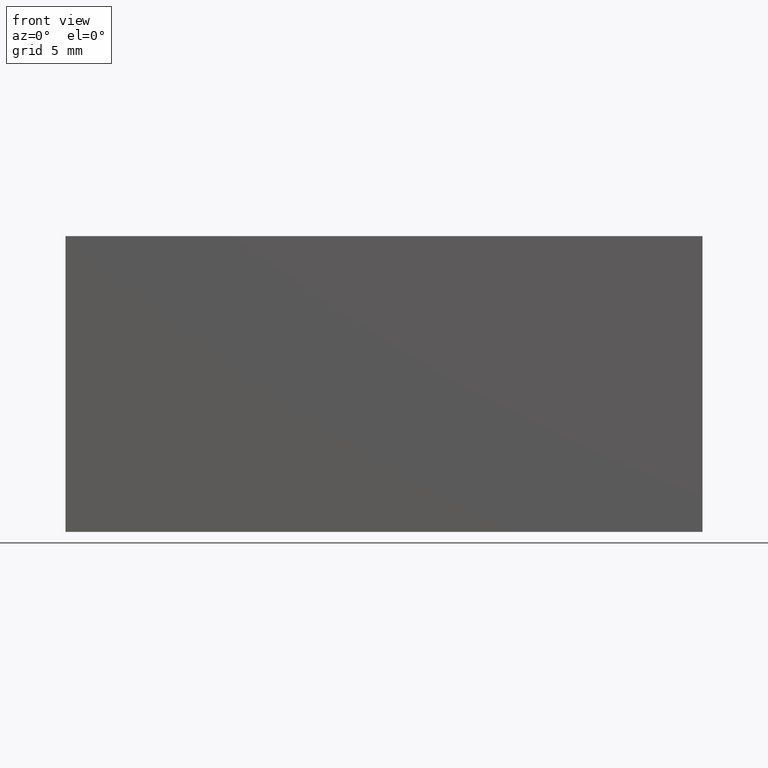
[diagram: clean part render]
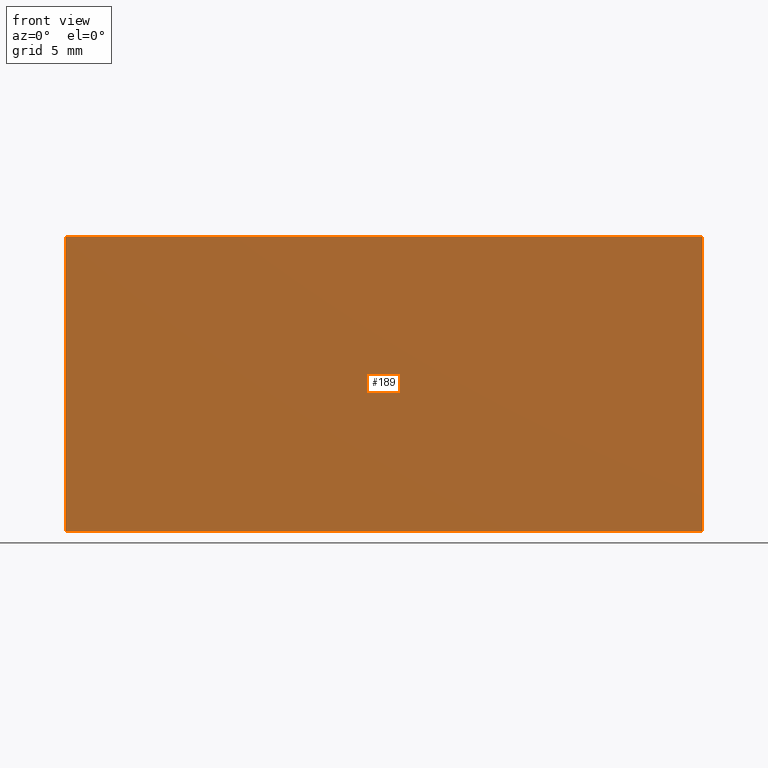
[diagram: same view with one face highlighted and labeled with its STEP entity id]
A machine part, front view. The second image highlights one B-rep face of the part: STEP entity #189.
In plain terms, the highlighted planar face has unit normal (0, -1, 0).
Its self-contained STEP definition (entity closure, byte-faithful):
#23=FACE_OUTER_BOUND('',#33,.T.);
#33=EDGE_LOOP('',(#152,#153,#154,#155));
#39=LINE('',#280,#63);
#56=LINE('',#315,#80);
#58=LINE('',#318,#82);
#59=LINE('',#319,#83);
#63=VECTOR('',#232,10.);
#80=VECTOR('',#261,10.);
#82=VECTOR('',#265,10.);
#83=VECTOR('',#266,10.);
#84=VERTEX_POINT('',#273);
#87=VERTEX_POINT('',#278);
#98=VERTEX_POINT('',#312);
#99=VERTEX_POINT('',#314);
#103=EDGE_CURVE('',#87,#84,#39,.T.);
#120=EDGE_CURVE('',#99,#98,#56,.T.);
#122=EDGE_CURVE('',#98,#84,#58,.T.);
#123=EDGE_CURVE('',#99,#87,#59,.T.);
#152=ORIENTED_EDGE('',*,*,#122,.T.);
#153=ORIENTED_EDGE('',*,*,#103,.F.);
#154=ORIENTED_EDGE('',*,*,#123,.F.);
#155=ORIENTED_EDGE('',*,*,#120,.T.);
#179=PLANE('',#222);
#189=ADVANCED_FACE('',(#23),#179,.T.);
#222=AXIS2_PLACEMENT_3D('',#317,#263,#264);
#232=DIRECTION('',(0.,0.,1.));
#261=DIRECTION('',(0.,0.,1.));
#263=DIRECTION('center_axis',(0.,-1.,0.));
#264=DIRECTION('ref_axis',(0.,0.,-1.));
#265=DIRECTION('',(-1.,0.,0.));
#266=DIRECTION('',(-1.,0.,0.));
#273=CARTESIAN_POINT('',(-14.,0.,13.));
#278=CARTESIAN_POINT('',(-14.,0.,0.));
#280=CARTESIAN_POINT('',(-14.,0.,0.));
#312=CARTESIAN_POINT('',(14.,0.,13.));
#314=CARTESIAN_POINT('',(14.,0.,0.));
#315=CARTESIAN_POINT('',(14.,0.,0.));
#317=CARTESIAN_POINT('Origin',(14.,0.,0.));
#318=CARTESIAN_POINT('',(14.,0.,13.));
#319=CARTESIAN_POINT('',(14.,0.,0.));